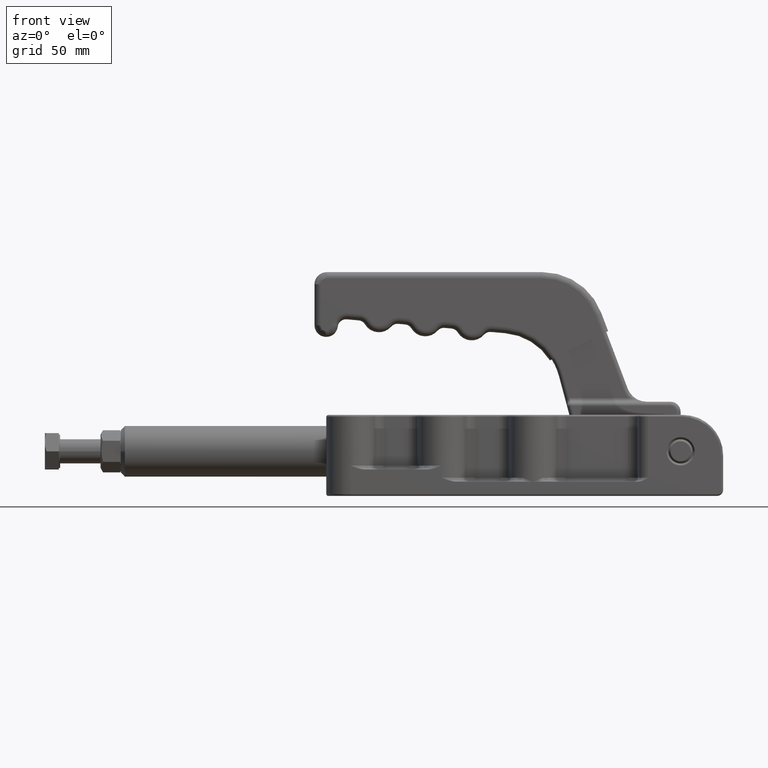
[diagram: clean part render]
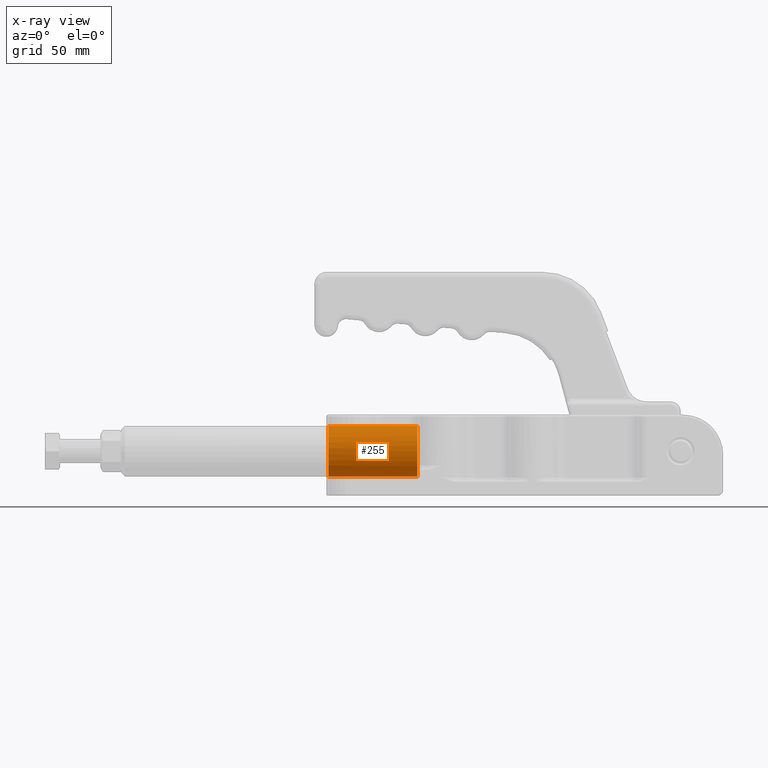
[diagram: x-ray — body ghosted, one internal face saturated and labeled with its STEP entity id]
A machine part, front view, then the same camera in x-ray: the body is ghosted and one INTERNAL B-rep face — a face not visible from any outside direction — is saturated and labeled: STEP entity #255.
In plain terms, the highlighted face is a freeform B-spline surface patch.
Its self-contained STEP definition (entity closure, byte-faithful):
#175=CARTESIAN_POINT('',(-0.006319827164305,55.933960241155930,9.499999999999879));
#176=CARTESIAN_POINT('',(43.993680172835440,55.933960241155937,9.499999999999879));
#177=CARTESIAN_POINT('',(-0.006319827164303,43.433960241155930,9.499999999999883));
#178=CARTESIAN_POINT('',(43.993680172835440,43.433960241155944,9.499999999999883));
#179=CARTESIAN_POINT('',(-0.006319827164303,43.433960241155930,21.999999999999879));
#180=CARTESIAN_POINT('',(43.993680172835440,43.433960241155937,21.999999999999879));
#181=CARTESIAN_POINT('',(-0.006319827164303,43.433960241155930,34.499999999999872));
#182=CARTESIAN_POINT('',(43.993680172835440,43.433960241155944,34.499999999999872));
#183=CARTESIAN_POINT('',(-0.006319827164305,55.933960241155930,34.499999999999879));
#184=CARTESIAN_POINT('',(43.993680172835440,55.933960241155937,34.499999999999879));
#185=CARTESIAN_POINT('',(-0.006319827164306,68.433960241155930,34.499999999999872));
#186=CARTESIAN_POINT('',(43.993680172835440,68.433960241155930,34.499999999999872));
#187=CARTESIAN_POINT('',(-0.006319827164306,68.433960241155930,21.999999999999879));
#188=CARTESIAN_POINT('',(43.993680172835440,68.433960241155944,21.999999999999879));
#189=CARTESIAN_POINT('',(-0.006319827164306,68.433960241155930,9.499999999999883));
#190=CARTESIAN_POINT('',(43.993680172835440,68.433960241155930,9.499999999999883));
#191=CARTESIAN_POINT('',(-0.006319827164305,55.933960241155930,9.499999999999879));
#192=CARTESIAN_POINT('',(43.993680172835440,55.933960241155937,9.499999999999879));
#200=(BOUNDED_SURFACE()B_SPLINE_SURFACE(1,2,((#175,#177,#179,#181,#183,#185,#187,#189,#191),(#176,#178,#180,#182,#184,#186,#188,#190,#192)),.UNSPECIFIED.,.F.,.T.,.U.)B_SPLINE_SURFACE_WITH_KNOTS((2,2),(3,2,2,2,3),(-17.096728442867132,-13.576728442867152),(0.0,19.634954084936208,39.269908169872416,58.904862254808620,78.539816339744831),.UNSPECIFIED.)GEOMETRIC_REPRESENTATION_ITEM()RATIONAL_B_SPLINE_SURFACE(((1.0,0.707106781186548,1.0,0.707106781186548,1.0,0.707106781186548,1.0,0.707106781186548,1.0),(1.0,0.707106781186548,1.0,0.707106781186548,1.0,0.707106781186548,1.0,0.707106781186548,1.0)))REPRESENTATION_ITEM('')SURFACE());
#201=CARTESIAN_POINT('',(43.993680172835440,55.933960241155937,34.499999999999872));
#202=VERTEX_POINT('',#201);
#203=CARTESIAN_POINT('',(-0.006319827164347,55.933960241155930,34.499999999999879));
#204=VERTEX_POINT('',#203);
#205=CARTESIAN_POINT('',(43.993680172835440,55.933960241155937,34.499999999999872));
#206=DIRECTION('',(-1.0,0.0,0.0));
#207=VECTOR('',#206,43.999999999999787);
#208=LINE('',#205,#207);
#209=EDGE_CURVE('',#202,#204,#208,.T.);
#210=ORIENTED_EDGE('',*,*,#209,.F.);
#211=CARTESIAN_POINT('',(43.993680172835440,45.933960241156086,29.500000000000060));
#212=VERTEX_POINT('',#211);
#213=CARTESIAN_POINT('',(43.993680172835440,55.933960241155930,21.999999999999879));
#214=DIRECTION('',(-1.0,0.0,0.0));
#215=DIRECTION('',(0.0,0.0,1.0));
#216=AXIS2_PLACEMENT_3D('',#213,#214,#215);
#217=CIRCLE('',#216,12.499999999999996);
#218=EDGE_CURVE('',#212,#202,#217,.T.);
#219=ORIENTED_EDGE('',*,*,#218,.F.);
#220=CARTESIAN_POINT('',(43.993680172835440,45.933960241156086,14.499999999999691));
#221=VERTEX_POINT('',#220);
#222=CARTESIAN_POINT('',(43.993680172835425,55.933960241155930,21.999999999999879));
#223=DIRECTION('',(1.0,0.0,0.0));
#224=DIRECTION('',(0.0,0.0,1.0));
#225=AXIS2_PLACEMENT_3D('',#222,#223,#224);
#226=CIRCLE('',#225,12.500000000000000);
#227=EDGE_CURVE('',#212,#221,#226,.T.);
#228=ORIENTED_EDGE('',*,*,#227,.T.);
#229=CARTESIAN_POINT('',(43.993680172835440,55.933960241155937,9.499999999999883));
#230=VERTEX_POINT('',#229);
#231=CARTESIAN_POINT('',(43.993680172835440,55.933960241155930,21.999999999999879));
#232=DIRECTION('',(-1.0,0.0,0.0));
#233=DIRECTION('',(0.0,0.0,1.0));
#234=AXIS2_PLACEMENT_3D('',#231,#232,#233);
#235=CIRCLE('',#234,12.499999999999996);
#236=EDGE_CURVE('',#230,#221,#235,.T.);
#237=ORIENTED_EDGE('',*,*,#236,.F.);
#238=CARTESIAN_POINT('',(-0.006319827164347,55.933960241155930,9.499999999999879));
#239=VERTEX_POINT('',#238);
#240=CARTESIAN_POINT('',(-0.006319827164347,55.933960241155930,9.499999999999879));
#241=DIRECTION('',(1.0,0.0,0.0));
#242=VECTOR('',#241,43.999999999999787);
#243=LINE('',#240,#242);
#244=EDGE_CURVE('',#239,#230,#243,.T.);
#245=ORIENTED_EDGE('',*,*,#244,.F.);
#246=CARTESIAN_POINT('',(-0.006319827164347,55.933960241155930,21.999999999999879));
#247=DIRECTION('',(1.0,0.0,0.0));
#248=DIRECTION('',(0.0,0.0,-1.0));
#249=AXIS2_PLACEMENT_3D('',#246,#247,#248);
#250=CIRCLE('',#249,12.500000000000000);
#251=EDGE_CURVE('',#204,#239,#250,.T.);
#252=ORIENTED_EDGE('',*,*,#251,.F.);
#253=EDGE_LOOP('',(#210,#219,#228,#237,#245,#252));
#254=FACE_OUTER_BOUND('',#253,.T.);
#255=ADVANCED_FACE('',(#254),#200,.F.);